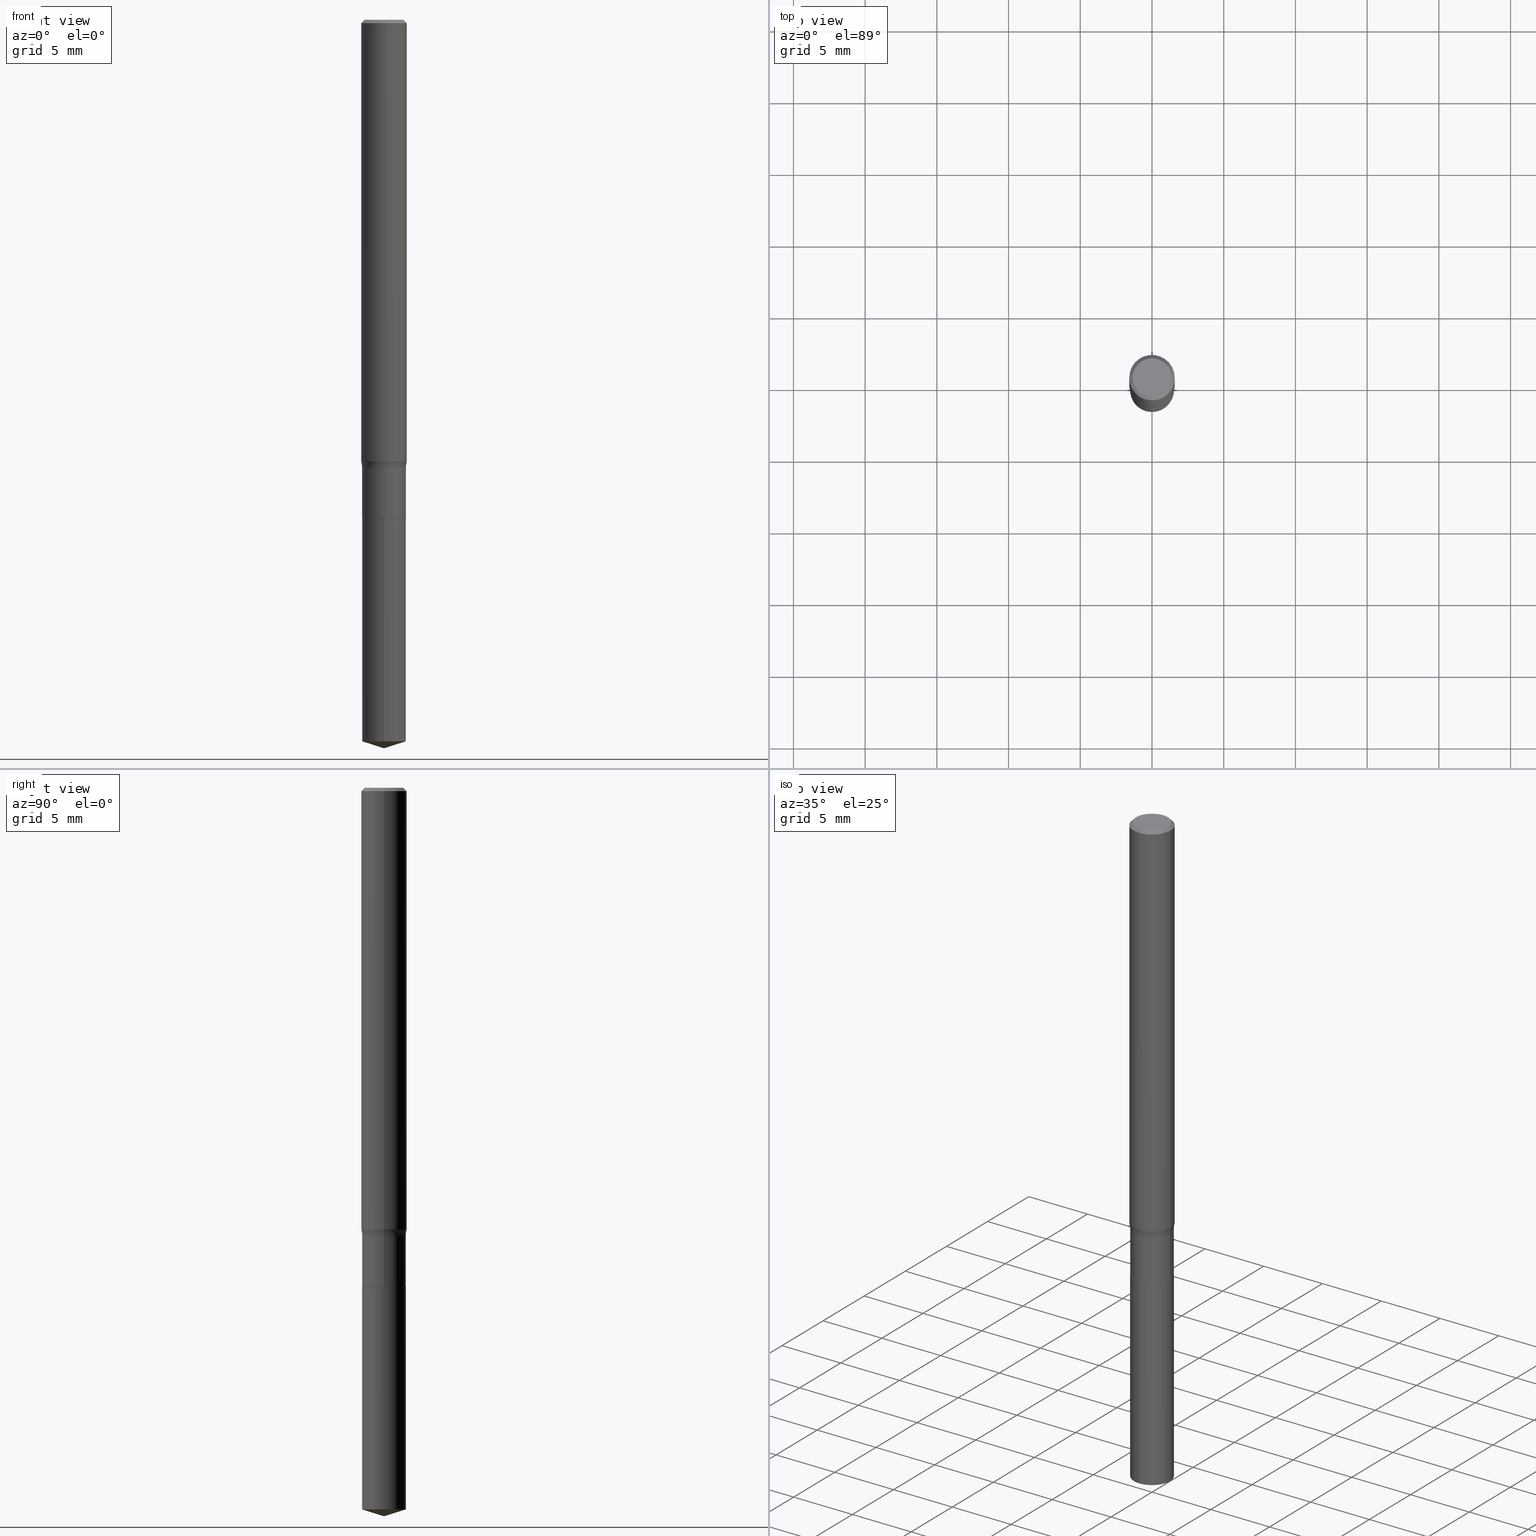
[diagram: canonical four-view strip — front | top / right | iso, engineering-drawing reading convention]
A machine part, canonical four-view strip (front | top / right | iso — engineering-drawing reading convention). The complete STEP part file that produces these views, byte-faithful:
ISO-10303-21;
HEADER;
FILE_DESCRIPTION (( 'STEP AP203' ),
    '1' );
FILE_NAME ('52316.STEP',
    '2024-04-19T13:36:10',
    ( '' ),
    ( '' ),
    'SwSTEP 2.0',
    'SolidWorks 2023',
    '' );
FILE_SCHEMA (( 'CONFIG_CONTROL_DESIGN' ));
ENDSEC;

DATA;
#1 = ORIENTED_EDGE ( 'NONE', *, *, #242, .T. ) ;
#2 = DIRECTION ( 'NONE',  ( -2.445468806185136597E-29, 3.491481338843145583E-15, 1.000000000000000000 ) ) ;
#3 = CARTESIAN_POINT ( 'NONE',  ( 2.292627005798581499E-31, -3.273263755165471417E-17, -0.009375000000000063838 ) ) ;
#4 = COORDINATED_UNIVERSAL_TIME_OFFSET ( 5, 0, .BEHIND. ) ;
#5 = CIRCLE ( 'NONE', #373, 0.07799999999999999989 ) ;
#6 = VERTEX_POINT ( 'NONE', #291 ) ;
#7 = DIRECTION ( 'NONE',  ( -1.000000000000000000, 6.982962677686265922E-15, -4.876176775795935793E-29 ) ) ;
#8 = ORIENTED_EDGE ( 'NONE', *, *, #246, .F. ) ;
#9 = DIRECTION ( 'NONE',  ( 1.000000000000000000, -6.982962677686260400E-15, 0.000000000000000000 ) ) ;
#10 = LINE ( 'NONE', #205, #301 ) ;
#11 = VERTEX_POINT ( 'NONE', #25 ) ;
#12 = CARTESIAN_POINT ( 'NONE',  ( 2.292627005798581499E-31, -3.273263755165471417E-17, -0.009375000000000063838 ) ) ;
#13 = DIRECTION ( 'NONE',  ( 1.000000000000000000, -6.982962677686260400E-15, 0.000000000000000000 ) ) ;
#14 = APPROVAL_ROLE ( '' ) ;
#15 = CIRCLE ( 'NONE', #211, 0.05999999999999999778 ) ;
#16 = ORIENTED_EDGE ( 'NONE', *, *, #24, .T. ) ;
#17 = AXIS2_PLACEMENT_3D ( 'NONE', #388, #337, #336 ) ;
#18 = DIRECTION ( 'NONE',  ( -6.982962677686265922E-15, -1.000000000000000000, 4.553079989440439092E-15 ) ) ;
#19 = PERSON_AND_ORGANIZATION ( #187, #224 ) ;
#20 = FACE_OUTER_BOUND ( 'NONE', #313, .T. ) ;
#21 = ADVANCED_FACE ( 'NONE', ( #328 ), #434, .T. ) ;
#22 = AXIS2_PLACEMENT_3D ( 'NONE', #103, #449, #297 ) ;
#23 =( GEOMETRIC_REPRESENTATION_CONTEXT ( 3 ) GLOBAL_UNCERTAINTY_ASSIGNED_CONTEXT ( ( #193 ) ) GLOBAL_UNIT_ASSIGNED_CONTEXT ( ( #278, #207, #378 ) ) REPRESENTATION_CONTEXT ( 'NONE', 'WORKASPACE' ) );
#24 = EDGE_CURVE ( 'NONE', #6, #293, #32, .T. ) ;
#25 = CARTESIAN_POINT ( 'NONE',  ( 0.05999999999999999778, -5.200561454206863446E-15, -1.369499999999999940 ) ) ;
#26 = PLANE ( 'NONE',  #272 ) ;
#27 = PLANE ( 'NONE',  #74 ) ;
#28 = ORIENTED_EDGE ( 'NONE', *, *, #37, .F. ) ;
#29 = DIRECTION ( 'NONE',  ( -2.445468806185136597E-29, 3.491481338843145583E-15, 1.000000000000000000 ) ) ;
#30 = DIRECTION ( 'NONE',  ( 1.000000000000000000, -6.982962677686266711E-15, 4.883557194083112340E-29 ) ) ;
#31 = DIRECTION ( 'NONE',  ( -2.445468806185136597E-29, 3.491481338843145583E-15, 1.000000000000000000 ) ) ;
#32 = CIRCLE ( 'NONE', #223, 0.05999999999999999778 ) ;
#33 = DIRECTION ( 'NONE',  ( 1.000000000000000000, -6.982962677686266711E-15, 4.876176775795935793E-29 ) ) ;
#34 = CIRCLE ( 'NONE', #485, 0.05999999999999998390 ) ;
#35 = ORIENTED_EDGE ( 'NONE', *, *, #276, .F. ) ;
#36 = CARTESIAN_POINT ( 'NONE',  ( 3.350292264473637048E-29, -4.783329434215109105E-15, -1.369999999999999885 ) ) ;
#37 = EDGE_CURVE ( 'NONE', #140, #11, #325, .T. ) ;
#38 = FACE_OUTER_BOUND ( 'NONE', #124, .T. ) ;
#39 = LINE ( 'NONE', #347, #219 ) ;
#40 = TOROIDAL_SURFACE ( 'NONE', #234, 0.1379999999999999560, 0.07799999999999999989 ) ;
#41 = CARTESIAN_POINT ( 'NONE',  ( 3.350292264473637048E-29, -4.783329434215109105E-15, -1.369999999999999885 ) ) ;
#42 = EDGE_LOOP ( 'NONE', ( #201, #87, #204, #118 ) ) ;
#43 = PERSON_AND_ORGANIZATION ( #187, #224 ) ;
#44 = ORIENTED_EDGE ( 'NONE', *, *, #435, .T. ) ;
#45 = LOCAL_TIME ( 9, 36, 10.00000000000000000, #260 ) ;
#46 = CLOSED_SHELL ( 'NONE', ( #331, #487, #470, #371, #344, #79, #158, #117, #318, #169, #376, #132 ) ) ;
#47 = VECTOR ( 'NONE', #370, 39.37007874015748143 ) ;
#48 = ORIENTED_EDGE ( 'NONE', *, *, #427, .T. ) ;
#49 = ORIENTED_EDGE ( 'NONE', *, *, #194, .F. ) ;
#50 = DIRECTION ( 'NONE',  ( -2.445138030022323446E-29, 3.491955029134903730E-15, 1.000000000000000000 ) ) ;
#51 = ORIENTED_EDGE ( 'NONE', *, *, #392, .F. ) ;
#52 = DIRECTION ( 'NONE',  ( -2.445138030022323446E-29, 3.491955029134904124E-15, 1.000000000000000000 ) ) ;
#53 = SHAPE_DEFINITION_REPRESENTATION ( #345, #255 ) ;
#54 = AXIS2_PLACEMENT_3D ( 'NONE', #384, #228, #289 ) ;
#55 = ORIENTED_EDGE ( 'NONE', *, *, #246, .T. ) ;
#56 = DIRECTION ( 'NONE',  ( 1.000000000000000000, -6.982962677686266711E-15, 0.000000000000000000 ) ) ;
#57 = PERSON_AND_ORGANIZATION ( #187, #224 ) ;
#58 = ORIENTED_EDGE ( 'NONE', *, *, #181, .F. ) ;
#59 = DIRECTION ( 'NONE',  ( -6.982962677686265922E-15, -1.000000000000000000, 4.553079989440439092E-15 ) ) ;
#60 = AXIS2_PLACEMENT_3D ( 'NONE', #36, #66, #405 ) ;
#61 = DIRECTION ( 'NONE',  ( 1.000000000000000000, -6.982962677686266711E-15, 0.000000000000000000 ) ) ;
#62 = EDGE_CURVE ( 'NONE', #229, #153, #107, .T. ) ;
#63 = ORIENTED_EDGE ( 'NONE', *, *, #62, .T. ) ;
#64 = DIRECTION ( 'NONE',  ( -2.445468806185136597E-29, 3.491481338843145583E-15, 1.000000000000000000 ) ) ;
#65 = CYLINDRICAL_SURFACE ( 'NONE', #339, 0.05999999999999999084 ) ;
#66 = DIRECTION ( 'NONE',  ( 2.445138030022323446E-29, -3.491955029134903730E-15, -1.000000000000000000 ) ) ;
#67 = CARTESIAN_POINT ( 'NONE',  ( -0.05949999999999999040, -4.360556506437849513E-15, -1.369999999999999885 ) ) ;
#68 = ORIENTED_EDGE ( 'NONE', *, *, #180, .T. ) ;
#69 = CARTESIAN_POINT ( 'NONE',  ( 3.012817569220087740E-29, -4.301505009454755187E-15, -1.231999999999999762 ) ) ;
#70 = APPROVAL_DATE_TIME ( #220, #436 ) ;
#71 = DIRECTION ( 'NONE',  ( -2.445138030022323446E-29, 3.491955029134904124E-15, 1.000000000000000000 ) ) ;
#72 = CC_DESIGN_PERSON_AND_ORGANIZATION_ASSIGNMENT ( #381, #191, ( #147 ) ) ;
#73 = CARTESIAN_POINT ( 'NONE',  ( 0.05949999999999999040, -5.198815713537441154E-15, -1.369999999999999885 ) ) ;
#74 = AXIS2_PLACEMENT_3D ( 'NONE', #176, #406, #7 ) ;
#75 = CONICAL_SURFACE ( 'NONE', #143, 124.8659371009132428, 1.265363707695887463 ) ;
#76 = APPROVAL_STATUS ( 'not_yet_approved' ) ;
#77 = ORIENTED_EDGE ( 'NONE', *, *, #427, .F. ) ;
#78 = DIRECTION ( 'NONE',  ( -2.445468806185136877E-29, 3.491481338843145188E-15, 1.000000000000000000 ) ) ;
#79 = ADVANCED_FACE ( 'NONE', ( #408 ), #65, .T. ) ;
#80 = PERSON_AND_ORGANIZATION ( #187, #224 ) ;
#81 = ORIENTED_EDGE ( 'NONE', *, *, #445, .T. ) ;
#82 = CARTESIAN_POINT ( 'NONE',  ( 3.350292264473637048E-29, -4.783329434215109105E-15, -1.369999999999999885 ) ) ;
#83 = ORIENTED_EDGE ( 'NONE', *, *, #37, .T. ) ;
#84 = CARTESIAN_POINT ( 'NONE',  ( 4.263256414561086600E-16, 0.05999999999999308664, -1.981082072667261107 ) ) ;
#85 = DIRECTION ( 'NONE',  ( -2.445138030022323446E-29, 3.491955029134904124E-15, 1.000000000000000000 ) ) ;
#86 = AXIS2_PLACEMENT_3D ( 'NONE', #361, #119, #13 ) ;
#87 = ORIENTED_EDGE ( 'NONE', *, *, #181, .T. ) ;
#88 = EDGE_CURVE ( 'NONE', #346, #140, #438, .T. ) ;
#89 = FACE_OUTER_BOUND ( 'NONE', #244, .T. ) ;
#90 = VERTEX_POINT ( 'NONE', #131 ) ;
#91 = CARTESIAN_POINT ( 'NONE',  ( -4.189777606611424662E-16, -0.06000000000000477868, -1.369999999999999662 ) ) ;
#92 = ORIENTED_EDGE ( 'NONE', *, *, #341, .F. ) ;
#93 = CIRCLE ( 'NONE', #369, 0.06250000000000013878 ) ;
#94 = CARTESIAN_POINT ( 'NONE',  ( 3.350292264473637048E-29, -4.783329434215109105E-15, -1.369999999999999885 ) ) ;
#95 = FACE_OUTER_BOUND ( 'NONE', #321, .T. ) ;
#96 = ORIENTED_EDGE ( 'NONE', *, *, #479, .T. ) ;
#97 = CARTESIAN_POINT ( 'NONE',  ( 0.000000000000000000, 0.000000000000000000, 0.000000000000000000 ) ) ;
#98 = ORIENTED_EDGE ( 'NONE', *, *, #338, .T. ) ;
#99 = CARTESIAN_POINT ( 'NONE',  ( 2.292627005798581499E-31, -3.273263755165471417E-17, -0.009375000000000063838 ) ) ;
#100 = CIRCLE ( 'NONE', #113, 0.06250000000000000000 ) ;
#101 = CIRCLE ( 'NONE', #490, 0.05312499999999999861 ) ;
#102 = LINE ( 'NONE', #218, #389 ) ;
#103 = CARTESIAN_POINT ( 'NONE',  ( 2.964911965054426097E-29, -4.233108503006840513E-15, -1.212410461975839571 ) ) ;
#104 = CC_DESIGN_PERSON_AND_ORGANIZATION_ASSIGNMENT ( #43, #115, ( #312 ) ) ;
#105 = ORIENTED_EDGE ( 'NONE', *, *, #168, .F. ) ;
#106 = DIRECTION ( 'NONE',  ( -2.445468806185136597E-29, 3.491481338843145583E-15, 1.000000000000000000 ) ) ;
#107 = CIRCLE ( 'NONE', #22, 0.06250000000000013878 ) ;
#108 = CONICAL_SURFACE ( 'NONE', #456, 0.06250000000000000000, 0.7853981633974471688 ) ;
#109 = DIRECTION ( 'NONE',  ( 0.000000000000000000, 0.000000000000000000, 1.000000000000000000 ) ) ;
#110 = EDGE_CURVE ( 'NONE', #229, #231, #102, .T. ) ;
#111 = CARTESIAN_POINT ( 'NONE',  ( 9.546038302585977863E-46, -1.362921273379660165E-31, -3.903561672282188024E-17 ) ) ;
#112 = CC_DESIGN_APPROVAL ( #436, ( #312 ) ) ;
#113 = AXIS2_PLACEMENT_3D ( 'NONE', #99, #248, #61 ) ;
#114 = LOCAL_TIME ( 9, 36, 10.00000000000000000, #170 ) ;
#115 = PERSON_AND_ORGANIZATION_ROLE ( 'creator' ) ;
#116 = ADVANCED_FACE ( 'NONE', ( #446 ), #285, .T. ) ;
#117 = ADVANCED_FACE ( 'NONE', ( #20 ), #252, .T. ) ;
#118 = ORIENTED_EDGE ( 'NONE', *, *, #290, .F. ) ;
#119 = DIRECTION ( 'NONE',  ( -2.445468806185136597E-29, 3.491481338843145583E-15, 1.000000000000000000 ) ) ;
#120 = DATE_AND_TIME ( #226, #129 ) ;
#121 = EDGE_LOOP ( 'NONE', ( #279, #452, #130 ) ) ;
#122 = EDGE_LOOP ( 'NONE', ( #51, #83, #198, #192 ) ) ;
#123 = AXIS2_PLACEMENT_3D ( 'NONE', #261, #354, #9 ) ;
#124 = EDGE_LOOP ( 'NONE', ( #81, #463, #350, #189 ) ) ;
#125 = DIRECTION ( 'NONE',  ( -2.445468806185136597E-29, 3.491481338843145583E-15, 1.000000000000000000 ) ) ;
#126 = DATE_AND_TIME ( #471, #284 ) ;
#127 = VERTEX_POINT ( 'NONE', #179 ) ;
#128 = ORIENTED_EDGE ( 'NONE', *, *, #420, .T. ) ;
#129 = LOCAL_TIME ( 9, 36, 10.00000000000000000, #4 ) ;
#130 = ORIENTED_EDGE ( 'NONE', *, *, #440, .F. ) ;
#131 = CARTESIAN_POINT ( 'NONE',  ( 0.05312499999999999861, -4.129888592719941322E-16, -3.903561672281913772E-17 ) ) ;
#132 = ADVANCED_FACE ( 'NONE', ( #451 ), #455, .T. ) ;
#133 = ORIENTED_EDGE ( 'NONE', *, *, #445, .F. ) ;
#134 = DIRECTION ( 'NONE',  ( -2.445468806185136597E-29, 3.491481338843145583E-15, 1.000000000000000000 ) ) ;
#135 = CARTESIAN_POINT ( 'NONE',  ( -0.06250000000000013878, -3.789019293156776319E-15, -1.212410461975839571 ) ) ;
#136 = DIRECTION ( 'NONE',  ( -2.445468806185136597E-29, 3.491481338843145583E-15, 1.000000000000000000 ) ) ;
#137 = TOROIDAL_SURFACE ( 'NONE', #249, 0.1379999999999999560, 0.07799999999999999989 ) ;
#138 = CIRCLE ( 'NONE', #404, 0.05999999999999999778 ) ;
#139 = CARTESIAN_POINT ( 'NONE',  ( -0.05312499999999999861, 3.873362110279098601E-16, -3.903561672282453649E-17 ) ) ;
#140 = VERTEX_POINT ( 'NONE', #480 ) ;
#141 = DIRECTION ( 'NONE',  ( 1.000000000000000000, -6.982962677686270655E-15, 0.000000000000000000 ) ) ;
#142 = FACE_OUTER_BOUND ( 'NONE', #121, .T. ) ;
#143 = AXIS2_PLACEMENT_3D ( 'NONE', #167, #85, #356 ) ;
#144 = COORDINATED_UNIVERSAL_TIME_OFFSET ( 5, 0, .BEHIND. ) ;
#145 = DIRECTION ( 'NONE',  ( -2.438088387897960049E-29, 3.491481338843145188E-15, 1.000000000000000000 ) ) ;
#146 = CARTESIAN_POINT ( 'NONE',  ( -0.05999999999999998390, -4.115218710044161299E-15, -1.231999999999999762 ) ) ;
#147 = PRODUCT ( '52316', '52316', '', ( #258 ) ) ;
#148 = SECURITY_CLASSIFICATION_LEVEL ( 'unclassified' ) ;
#149 = LINE ( 'NONE', #73, #239 ) ;
#150 = SECURITY_CLASSIFICATION ( '', '', #148 ) ;
#151 = DIRECTION ( 'NONE',  ( 6.776566513254248671E-15, 0.9537169507482274877, 0.3007057995042711762 ) ) ;
#152 = AXIS2_PLACEMENT_3D ( 'NONE', #489, #254, #299 ) ;
#153 = VERTEX_POINT ( 'NONE', #135 ) ;
#154 = CARTESIAN_POINT ( 'NONE',  ( 0.05999999999999998390, -4.720482770115931032E-15, -1.231999999999999762 ) ) ;
#155 = EDGE_LOOP ( 'NONE', ( #390, #128, #48, #28 ) ) ;
#156 = CARTESIAN_POINT ( 'NONE',  ( 4.844472279817221330E-29, -6.917200551079731638E-15, -1.981082072667260885 ) ) ;
#157 = EDGE_LOOP ( 'NONE', ( #396, #240 ) ) ;
#158 = ADVANCED_FACE ( 'NONE', ( #95 ), #137, .F. ) ;
#159 = DIRECTION ( 'NONE',  ( -2.445468806185136597E-29, 3.491481338843145583E-15, 1.000000000000000000 ) ) ;
#160 = LOCAL_TIME ( 9, 36, 10.00000000000000000, #144 ) ;
#161 = PERSON_AND_ORGANIZATION_ROLE ( 'classification_officer' ) ;
#162 = CIRCLE ( 'NONE', #430, 0.05999999999999999778 ) ;
#163 =( LENGTH_UNIT ( ) NAMED_UNIT ( * ) SI_UNIT ( $, .METRE. ) );
#164 = ORIENTED_EDGE ( 'NONE', *, *, #266, .T. ) ;
#165 = CARTESIAN_POINT ( 'NONE',  ( 0.05999999999999999084, -4.189777606611759435E-16, 2.925706065477561055E-30 ) ) ;
#166 = MANIFOLD_SOLID_BREP ( 'Body-Move/Copy2[1]', #210 ) ;
#167 = CARTESIAN_POINT ( 'NONE',  ( -9.137454754914471852E-28, 1.304952833515599863E-13, 37.37007874015748143 ) ) ;
#168 = EDGE_CURVE ( 'NONE', #231, #127, #100, .T. ) ;
#169 = ADVANCED_FACE ( 'NONE', ( #241 ), #27, .F. ) ;
#170 = COORDINATED_UNIVERSAL_TIME_OFFSET ( 5, 0, .BEHIND. ) ;
#171 = ORIENTED_EDGE ( 'NONE', *, *, #440, .T. ) ;
#172 = AXIS2_PLACEMENT_3D ( 'NONE', #111, #2, #222 ) ;
#173 = ORIENTED_EDGE ( 'NONE', *, *, #242, .F. ) ;
#174 = DIRECTION ( 'NONE',  ( -2.445138030022323446E-29, 3.491955029134904124E-15, 1.000000000000000000 ) ) ;
#175 = CYLINDRICAL_SURFACE ( 'NONE', #152, 0.05999999999999999084 ) ;
#176 = CARTESIAN_POINT ( 'NONE',  ( 4.773019151292988932E-46, -6.814606366898300824E-32, -1.951780836141094012E-17 ) ) ;
#177 = CC_DESIGN_PERSON_AND_ORGANIZATION_ASSIGNMENT ( #188, #343, ( #232 ) ) ;
#178 = AXIS2_PLACEMENT_3D ( 'NONE', #12, #159, #56 ) ;
#179 = CARTESIAN_POINT ( 'NONE',  ( -0.06250000000000000000, -1.688831360429183546E-15, -0.009375000000000063838 ) ) ;
#180 = EDGE_CURVE ( 'NONE', #153, #379, #448, .T. ) ;
#181 = EDGE_CURVE ( 'NONE', #90, #231, #359, .T. ) ;
#182 = DATE_TIME_ROLE ( 'creation_date' ) ;
#183 = LINE ( 'NONE', #304, #477 ) ;
#184 = VECTOR ( 'NONE', #374, 39.37007874015748143 ) ;
#185 = AXIS2_PLACEMENT_3D ( 'NONE', #283, #125, #238 ) ;
#186 = CARTESIAN_POINT ( 'NONE',  ( 0.000000000000000000, 0.000000000000000000, 0.000000000000000000 ) ) ;
#187 = PERSON ( 'UNSPECIFIED', 'UNSPECIFIED', 'UNSPECIFIED', ('UNSPECIFIED'), ('UNSPECIFIED'), ('UNSPECIFIED') ) ;
#188 = PERSON_AND_ORGANIZATION ( #187, #224 ) ;
#189 = ORIENTED_EDGE ( 'NONE', *, *, #474, .F. ) ;
#190 = CARTESIAN_POINT ( 'NONE',  ( 0.06250000000000000000, -4.691678049070464390E-16, -0.009375000000000063838 ) ) ;
#191 = PERSON_AND_ORGANIZATION_ROLE ( 'design_owner' ) ;
#192 = ORIENTED_EDGE ( 'NONE', *, *, #266, .F. ) ;
#193 = UNCERTAINTY_MEASURE_WITH_UNIT (LENGTH_MEASURE( 1.000000000000000082E-05 ), #278, 'distance_accuracy_value', 'NONE');
#194 = EDGE_CURVE ( 'NONE', #315, #473, #399, .T. ) ;
#195 = PERSON_AND_ORGANIZATION ( #187, #224 ) ;
#196 = ORIENTED_EDGE ( 'NONE', *, *, #197, .T. ) ;
#197 = EDGE_CURVE ( 'NONE', #127, #231, #398, .T. ) ;
#198 = ORIENTED_EDGE ( 'NONE', *, *, #474, .T. ) ;
#199 = FACE_OUTER_BOUND ( 'NONE', #421, .T. ) ;
#200 = DATE_AND_TIME ( #397, #114 ) ;
#201 = ORIENTED_EDGE ( 'NONE', *, *, #360, .F. ) ;
#202 = CIRCLE ( 'NONE', #333, 0.05999999999999998390 ) ;
#203 = APPROVAL_PERSON_ORGANIZATION ( #80, #436, #262 ) ;
#204 = ORIENTED_EDGE ( 'NONE', *, *, #168, .T. ) ;
#205 = CARTESIAN_POINT ( 'NONE',  ( 4.891190334145958916E-29, -6.982612146870389687E-15, -2.000000000000000000 ) ) ;
#206 = EDGE_CURVE ( 'NONE', #315, #400, #10, .T. ) ;
#207 =( NAMED_UNIT ( * ) PLANE_ANGLE_UNIT ( ) SI_UNIT ( $, .RADIAN. ) );
#208 = EDGE_LOOP ( 'NONE', ( #58, #326, #464, #196 ) ) ;
#209 = LINE ( 'NONE', #165, #47 ) ;
#210 = CLOSED_SHELL ( 'NONE', ( #21, #259, #362, #116, #357 ) ) ;
#211 = AXIS2_PLACEMENT_3D ( 'NONE', #82, #432, #444 ) ;
#212 = DIRECTION ( 'NONE',  ( -6.982962677686265922E-15, -1.000000000000000000, 4.553079989440439092E-15 ) ) ;
#213 = DIRECTION ( 'NONE',  ( -6.982962677686267499E-15, -1.000000000000000000, 3.500519750498755708E-15 ) ) ;
#214 = ORIENTED_EDGE ( 'NONE', *, *, #88, .T. ) ;
#215 = CARTESIAN_POINT ( 'NONE',  ( 0.05949999999999999040, -5.198815713537441154E-15, -1.369999999999999885 ) ) ;
#216 = DIRECTION ( 'NONE',  ( -2.445138030022323446E-29, 3.491955029134904124E-15, 1.000000000000000000 ) ) ;
#217 = DIRECTION ( 'NONE',  ( -6.982962677686266711E-15, -1.000000000000000000, 3.491481338843145583E-15 ) ) ;
#218 = CARTESIAN_POINT ( 'NONE',  ( 0.06250000000000006939, -4.364351673553921624E-16, 3.047610484872463374E-30 ) ) ;
#219 = VECTOR ( 'NONE', #305, 39.37007874015748143 ) ;
#220 = DATE_AND_TIME ( #414, #160 ) ;
#221 = APPLICATION_CONTEXT ( 'configuration controlled 3d designs of mechanical parts and assemblies' ) ;
#222 = DIRECTION ( 'NONE',  ( 1.000000000000000000, -6.982962677686266711E-15, 4.881282378734115390E-29 ) ) ;
#223 = AXIS2_PLACEMENT_3D ( 'NONE', #94, #174, #212 ) ;
#224 = ORGANIZATION ( 'UNSPECIFIED', 'UNSPECIFIED', '' ) ;
#225 = CC_DESIGN_PERSON_AND_ORGANIZATION_ASSIGNMENT ( #19, #161, ( #150 ) ) ;
#226 = CALENDAR_DATE ( 2024, 19, 4 ) ;
#227 = ORIENTED_EDGE ( 'NONE', *, *, #276, .T. ) ;
#228 = DIRECTION ( 'NONE',  ( -2.445468806185136597E-29, 3.491481338843145583E-15, 1.000000000000000000 ) ) ;
#229 = VERTEX_POINT ( 'NONE', #281 ) ;
#230 = FACE_OUTER_BOUND ( 'NONE', #270, .T. ) ;
#231 = VERTEX_POINT ( 'NONE', #190 ) ;
#232 = PRODUCT_DEFINITION_FORMATION_WITH_SPECIFIED_SOURCE ( 'ANY', '', #147, .NOT_KNOWN. ) ;
#233 = AXIS2_PLACEMENT_3D ( 'NONE', #402, #372, #327 ) ;
#234 = AXIS2_PLACEMENT_3D ( 'NONE', #69, #106, #412 ) ;
#235 = ORIENTED_EDGE ( 'NONE', *, *, #338, .F. ) ;
#236 = EDGE_LOOP ( 'NONE', ( #1, #55, #482, #323 ) ) ;
#237 = DIRECTION ( 'NONE',  ( 1.000000000000000000, -6.982962677686268288E-15, 0.000000000000000000 ) ) ;
#238 = DIRECTION ( 'NONE',  ( 1.000000000000000000, -6.982962677686266711E-15, 4.876176775795935793E-29 ) ) ;
#239 = VECTOR ( 'NONE', #308, 39.37007874015748143 ) ;
#240 = ORIENTED_EDGE ( 'NONE', *, *, #360, .T. ) ;
#241 = FACE_OUTER_BOUND ( 'NONE', #157, .T. ) ;
#242 = EDGE_CURVE ( 'NONE', #473, #400, #162, .T. ) ;
#243 = DIRECTION ( 'NONE',  ( 1.000000000000000000, -6.982962677686266711E-15, 4.876176775795935793E-29 ) ) ;
#244 = EDGE_LOOP ( 'NONE', ( #49, #306, #173 ) ) ;
#245 = DIRECTION ( 'NONE',  ( 1.000000000000000000, -6.982962677686269866E-15, 0.000000000000000000 ) ) ;
#246 = EDGE_CURVE ( 'NONE', #400, #6, #428, .T. ) ;
#247 = CARTESIAN_POINT ( 'NONE',  ( 4.890276060044646893E-29, -6.983910058269807459E-15, -2.000000000000000000 ) ) ;
#248 = DIRECTION ( 'NONE',  ( -2.445468806185136597E-29, 3.491481338843145583E-15, 1.000000000000000000 ) ) ;
#249 = AXIS2_PLACEMENT_3D ( 'NONE', #335, #486, #30 ) ;
#250 = VECTOR ( 'NONE', #475, 39.37007874015748143 ) ;
#251 = CARTESIAN_POINT ( 'NONE',  ( 0.1379999999999999560, -5.265153858975459078E-15, -1.231999999999999762 ) ) ;
#252 = CYLINDRICAL_SURFACE ( 'NONE', #332, 0.06250000000000006939 ) ;
#253 = CARTESIAN_POINT ( 'NONE',  ( 0.000000000000000000, 0.000000000000000000, 0.000000000000000000 ) ) ;
#254 = DIRECTION ( 'NONE',  ( -2.445468806185136597E-29, 3.491481338843145583E-15, 1.000000000000000000 ) ) ;
#255 = ADVANCED_BREP_SHAPE_REPRESENTATION ( '52316', ( #166, #491, #383 ), #23 ) ;
#256 = VERTEX_POINT ( 'NONE', #154 ) ;
#257 = FACE_OUTER_BOUND ( 'NONE', #431, .T. ) ;
#258 = MECHANICAL_CONTEXT ( 'NONE', #302, 'mechanical' ) ;
#259 = ADVANCED_FACE ( 'NONE', ( #89 ), #75, .T. ) ;
#260 = COORDINATED_UNIVERSAL_TIME_OFFSET ( 5, 0, .BEHIND. ) ;
#261 = CARTESIAN_POINT ( 'NONE',  ( 3.350292264473637048E-29, -4.783329434215109105E-15, -1.369999999999999885 ) ) ;
#262 = APPROVAL_ROLE ( '' ) ;
#263 = VECTOR ( 'NONE', #368, 39.37007874015748143 ) ;
#264 = CIRCLE ( 'NONE', #86, 0.05949999999999999040 ) ;
#265 = PERSON_AND_ORGANIZATION ( #187, #224 ) ;
#266 = EDGE_CURVE ( 'NONE', #379, #256, #34, .T. ) ;
#267 = ORIENTED_EDGE ( 'NONE', *, *, #197, .F. ) ;
#268 = DIRECTION ( 'NONE',  ( -1.000000000000000000, 6.982962677686266711E-15, 0.000000000000000000 ) ) ;
#269 = ORIENTED_EDGE ( 'NONE', *, *, #341, .T. ) ;
#270 = EDGE_LOOP ( 'NONE', ( #227, #214, #133, #77 ) ) ;
#271 = AXIS2_PLACEMENT_3D ( 'NONE', #481, #136, #237 ) ;
#272 = AXIS2_PLACEMENT_3D ( 'NONE', #41, #145, #425 ) ;
#273 = ORIENTED_EDGE ( 'NONE', *, *, #110, .T. ) ;
#274 = CARTESIAN_POINT ( 'NONE',  ( -4.189777606611274778E-16, -0.06000000000000692280, -1.981082072667260663 ) ) ;
#275 = CARTESIAN_POINT ( 'NONE',  ( 0.06250000000000000000, -4.615137624123754923E-16, -0.009375000000000063838 ) ) ;
#276 = EDGE_CURVE ( 'NONE', #358, #346, #264, .T. ) ;
#277 = DIRECTION ( 'NONE',  ( -2.445468806185136597E-29, 3.491481338843145583E-15, 1.000000000000000000 ) ) ;
#278 =( CONVERSION_BASED_UNIT ( 'INCH', #472 ) LENGTH_UNIT ( ) NAMED_UNIT ( #307 ) );
#279 = ORIENTED_EDGE ( 'NONE', *, *, #206, .F. ) ;
#280 = DIRECTION ( 'NONE',  ( 7.105427357601001859E-15, 1.000000000000000000, -3.491481338843145583E-15 ) ) ;
#281 = CARTESIAN_POINT ( 'NONE',  ( 0.06250000000000013878, -4.669543670362232971E-15, -1.212410461975839571 ) ) ;
#282 = DIRECTION ( 'NONE',  ( -2.445138030022323446E-29, 3.491955029134904124E-15, 1.000000000000000000 ) ) ;
#283 = CARTESIAN_POINT ( 'NONE',  ( 0.000000000000000000, 0.000000000000000000, 0.000000000000000000 ) ) ;
#284 = LOCAL_TIME ( 9, 36, 10.00000000000000000, #320 ) ;
#285 = CYLINDRICAL_SURFACE ( 'NONE', #468, 0.05999999999999999778 ) ;
#286 = EDGE_CURVE ( 'NONE', #293, #6, #15, .T. ) ;
#287 = CONICAL_SURFACE ( 'NONE', #17, 0.05949999999999999040, 0.7853981633975591903 ) ;
#288 = ORIENTED_EDGE ( 'NONE', *, *, #420, .F. ) ;
#289 = DIRECTION ( 'NONE',  ( 1.000000000000000000, -6.982962677686268288E-15, 0.000000000000000000 ) ) ;
#290 = EDGE_CURVE ( 'NONE', #365, #127, #319, .T. ) ;
#291 = CARTESIAN_POINT ( 'NONE',  ( 4.263256414561086600E-16, 0.05999999999999521688, -1.370000000000000107 ) ) ;
#292 = CARTESIAN_POINT ( 'NONE',  ( 3.012817569220087740E-29, -4.301505009454755187E-15, -1.231999999999999762 ) ) ;
#293 = VERTEX_POINT ( 'NONE', #91 ) ;
#294 = APPROVAL_PERSON_ORGANIZATION ( #265, #364, #349 ) ;
#295 = CIRCLE ( 'NONE', #123, 0.05949999999999999040 ) ;
#296 = VECTOR ( 'NONE', #78, 39.37007874015748143 ) ;
#297 = DIRECTION ( 'NONE',  ( 1.000000000000000000, -6.982962677686262766E-15, 0.000000000000000000 ) ) ;
#298 = FACE_OUTER_BOUND ( 'NONE', #387, .T. ) ;
#299 = DIRECTION ( 'NONE',  ( 1.000000000000000000, -6.982962677686266711E-15, 4.876176775795935793E-29 ) ) ;
#300 = APPLICATION_PROTOCOL_DEFINITION ( 'international standard', 'config_control_design', 1994, #221 ) ;
#301 = VECTOR ( 'NONE', #151, 39.37007874015748854 ) ;
#302 = APPLICATION_CONTEXT ( 'configuration controlled 3d designs of mechanical parts and assemblies' ) ;
#303 = CALENDAR_DATE ( 2024, 19, 4 ) ;
#304 = CARTESIAN_POINT ( 'NONE',  ( -4.189777606611424662E-16, -0.06000000000000477868, -1.369999999999999662 ) ) ;
#305 = DIRECTION ( 'NONE',  ( -2.445468806185136877E-29, 3.491481338843145188E-15, 1.000000000000000000 ) ) ;
#306 = ORIENTED_EDGE ( 'NONE', *, *, #206, .T. ) ;
#307 = DIMENSIONAL_EXPONENTS ( 1.000000000000000000, 0.000000000000000000, 0.000000000000000000, 0.000000000000000000, 0.000000000000000000, 0.000000000000000000, 0.000000000000000000 ) ;
#308 = DIRECTION ( 'NONE',  ( 0.7071067811866259545, -2.468850131083078659E-15, 0.7071067811864690800 ) ) ;
#309 = AXIS2_PLACEMENT_3D ( 'NONE', #3, #310, #268 ) ;
#310 = DIRECTION ( 'NONE',  ( 2.445468806185136597E-29, -3.491481338843145583E-15, -1.000000000000000000 ) ) ;
#311 = APPLICATION_PROTOCOL_DEFINITION ( 'international standard', 'config_control_design', 1994, #302 ) ;
#312 = PRODUCT_DEFINITION ( 'UNKNOWN', '', #232, #314 ) ;
#313 = EDGE_LOOP ( 'NONE', ( #394, #269, #273, #267 ) ) ;
#314 = DESIGN_CONTEXT ( 'detailed design', #221, 'design' ) ;
#315 = VERTEX_POINT ( 'NONE', #247 ) ;
#316 = APPROVAL ( #324, 'UNSPECIFIED' ) ;
#317 = ORIENTED_EDGE ( 'NONE', *, *, #110, .F. ) ;
#318 = ADVANCED_FACE ( 'NONE', ( #348 ), #340, .T. ) ;
#319 = LINE ( 'NONE', #322, #250 ) ;
#320 = COORDINATED_UNIVERSAL_TIME_OFFSET ( 5, 0, .BEHIND. ) ;
#321 = EDGE_LOOP ( 'NONE', ( #330, #386, #98, #96 ) ) ;
#322 = CARTESIAN_POINT ( 'NONE',  ( -0.06250000000000000000, 4.037025298037369491E-16, -0.009375000000000063838 ) ) ;
#323 = ORIENTED_EDGE ( 'NONE', *, *, #413, .F. ) ;
#324 = APPROVAL_STATUS ( 'not_yet_approved' ) ;
#325 = CIRCLE ( 'NONE', #271, 0.05999999999999999778 ) ;
#326 = ORIENTED_EDGE ( 'NONE', *, *, #401, .F. ) ;
#327 = DIRECTION ( 'NONE',  ( 1.000000000000000000, -6.982962677686260400E-15, 0.000000000000000000 ) ) ;
#328 = FACE_OUTER_BOUND ( 'NONE', #236, .T. ) ;
#329 = CARTESIAN_POINT ( 'NONE',  ( -0.05949999999999999040, -4.357907279263738312E-15, -1.369999999999999885 ) ) ;
#330 = ORIENTED_EDGE ( 'NONE', *, *, #180, .F. ) ;
#331 = ADVANCED_FACE ( 'NONE', ( #230 ), #287, .T. ) ;
#332 = AXIS2_PLACEMENT_3D ( 'NONE', #97, #375, #33 ) ;
#333 = AXIS2_PLACEMENT_3D ( 'NONE', #292, #134, #245 ) ;
#334 = DIRECTION ( 'NONE',  ( 1.000000000000000000, -6.982962677686262766E-15, 0.000000000000000000 ) ) ;
#335 = CARTESIAN_POINT ( 'NONE',  ( 3.012817569220087740E-29, -4.301505009454755187E-15, -1.231999999999999762 ) ) ;
#336 = DIRECTION ( 'NONE',  ( 1.000000000000000000, -6.982962677686260400E-15, 0.000000000000000000 ) ) ;
#337 = DIRECTION ( 'NONE',  ( -2.445468806185136597E-29, 3.491481338843145583E-15, 1.000000000000000000 ) ) ;
#338 = EDGE_CURVE ( 'NONE', #229, #256, #5, .T. ) ;
#339 = AXIS2_PLACEMENT_3D ( 'NONE', #253, #64, #243 ) ;
#340 = CONICAL_SURFACE ( 'NONE', #309, 0.06250000000000000000, 0.7853981633974471688 ) ;
#341 = EDGE_CURVE ( 'NONE', #153, #229, #93, .T. ) ;
#342 = PRODUCT_RELATED_PRODUCT_CATEGORY ( 'detail', '', ( #147 ) ) ;
#343 = PERSON_AND_ORGANIZATION_ROLE ( 'creator' ) ;
#344 = ADVANCED_FACE ( 'NONE', ( #38 ), #175, .T. ) ;
#345 = PRODUCT_DEFINITION_SHAPE ( 'NONE', 'NONE',  #312 ) ;
#346 = VERTEX_POINT ( 'NONE', #329 ) ;
#347 = CARTESIAN_POINT ( 'NONE',  ( -0.05999999999999999084, 4.263256414560600464E-16, -2.951361054152942712E-30 ) ) ;
#348 = FACE_OUTER_BOUND ( 'NONE', #208, .T. ) ;
#349 = APPROVAL_ROLE ( '' ) ;
#350 = ORIENTED_EDGE ( 'NONE', *, *, #479, .F. ) ;
#351 = CONICAL_SURFACE ( 'NONE', #391, 124.8659371009132428, 1.265363707695887463 ) ;
#352 = CARTESIAN_POINT ( 'NONE',  ( 4.263256414560935237E-16, 0.05999999999999521688, -1.370000000000000107 ) ) ;
#353 = ORIENTED_EDGE ( 'NONE', *, *, #24, .F. ) ;
#354 = DIRECTION ( 'NONE',  ( -2.445468806185136597E-29, 3.491481338843145583E-15, 1.000000000000000000 ) ) ;
#355 = CARTESIAN_POINT ( 'NONE',  ( 4.890276060044646332E-29, -6.983910058269807459E-15, -2.000000000000000000 ) ) ;
#356 = DIRECTION ( 'NONE',  ( -6.982962677686267499E-15, -1.000000000000000000, 3.500519750498755708E-15 ) ) ;
#357 = ADVANCED_FACE ( 'NONE', ( #380 ), #450, .F. ) ;
#358 = VERTEX_POINT ( 'NONE', #215 ) ;
#359 = LINE ( 'NONE', #275, #484 ) ;
#360 = EDGE_CURVE ( 'NONE', #90, #365, #101, .T. ) ;
#361 = CARTESIAN_POINT ( 'NONE',  ( 3.350292264473637048E-29, -4.783329434215109105E-15, -1.369999999999999885 ) ) ;
#362 = ADVANCED_FACE ( 'NONE', ( #142 ), #351, .T. ) ;
#363 = DATE_TIME_ROLE ( 'classification_date' ) ;
#364 = APPROVAL ( #76, 'UNSPECIFIED' ) ;
#365 = VERTEX_POINT ( 'NONE', #139 ) ;
#366 = APPROVAL_PERSON_ORGANIZATION ( #57, #316, #14 ) ;
#367 = AXIS2_PLACEMENT_3D ( 'NONE', #442, #282, #59 ) ;
#368 = DIRECTION ( 'NONE',  ( -6.659769872151623411E-15, -0.9537169507482254893, 0.3007057995042778376 ) ) ;
#369 = AXIS2_PLACEMENT_3D ( 'NONE', #410, #31, #334 ) ;
#370 = DIRECTION ( 'NONE',  ( -2.445468806185136877E-29, 3.491481338843145188E-15, 1.000000000000000000 ) ) ;
#371 = ADVANCED_FACE ( 'NONE', ( #298 ), #40, .F. ) ;
#372 = DIRECTION ( 'NONE',  ( -2.445468806185136597E-29, 3.491481338843145583E-15, 1.000000000000000000 ) ) ;
#373 = AXIS2_PLACEMENT_3D ( 'NONE', #251, #217, #141 ) ;
#374 = DIRECTION ( 'NONE',  ( -0.7071067811866259545, 7.493145998870638150E-15, 0.7071067811864690800 ) ) ;
#375 = DIRECTION ( 'NONE',  ( -2.445468806185136597E-29, 3.491481338843145583E-15, 1.000000000000000000 ) ) ;
#376 = ADVANCED_FACE ( 'NONE', ( #257 ), #26, .F. ) ;
#377 = DIRECTION ( 'NONE',  ( -6.982962677686265922E-15, -1.000000000000000000, 4.553079989440439092E-15 ) ) ;
#378 =( NAMED_UNIT ( * ) SI_UNIT ( $, .STERADIAN. ) SOLID_ANGLE_UNIT ( ) );
#379 = VERTEX_POINT ( 'NONE', #146 ) ;
#380 = FACE_OUTER_BOUND ( 'NONE', #478, .T. ) ;
#381 = PERSON_AND_ORGANIZATION ( #187, #224 ) ;
#382 = DIRECTION ( 'NONE',  ( -6.982962677686265922E-15, -1.000000000000000000, 4.553079989440439092E-15 ) ) ;
#383 = AXIS2_PLACEMENT_3D ( 'NONE', #186, #109, #488 ) ;
#384 = CARTESIAN_POINT ( 'NONE',  ( 3.349069530070544246E-29, -4.781583693545687601E-15, -1.369499999999999940 ) ) ;
#385 = APPROVAL_DATE_TIME ( #120, #364 ) ;
#386 = ORIENTED_EDGE ( 'NONE', *, *, #62, .F. ) ;
#387 = EDGE_LOOP ( 'NONE', ( #92, #68, #164, #235 ) ) ;
#388 = CARTESIAN_POINT ( 'NONE',  ( 3.350292264473637048E-29, -4.783329434215109105E-15, -1.369999999999999885 ) ) ;
#389 = VECTOR ( 'NONE', #409, 39.37007874015748143 ) ;
#390 = ORIENTED_EDGE ( 'NONE', *, *, #88, .F. ) ;
#391 = AXIS2_PLACEMENT_3D ( 'NONE', #457, #483, #213 ) ;
#392 = EDGE_CURVE ( 'NONE', #140, #379, #39, .T. ) ;
#393 = CARTESIAN_POINT ( 'NONE',  ( 3.012817569220087740E-29, -4.301505009454755187E-15, -1.231999999999999762 ) ) ;
#394 = ORIENTED_EDGE ( 'NONE', *, *, #435, .F. ) ;
#395 = DIRECTION ( 'NONE',  ( -1.000000000000000000, 6.982962677686266711E-15, 0.000000000000000000 ) ) ;
#396 = ORIENTED_EDGE ( 'NONE', *, *, #401, .T. ) ;
#397 = CALENDAR_DATE ( 2024, 19, 4 ) ;
#398 = CIRCLE ( 'NONE', #178, 0.06250000000000000000 ) ;
#399 = LINE ( 'NONE', #355, #263 ) ;
#400 = VERTEX_POINT ( 'NONE', #84 ) ;
#401 = EDGE_CURVE ( 'NONE', #365, #90, #460, .T. ) ;
#402 = CARTESIAN_POINT ( 'NONE',  ( 3.350292264473637048E-29, -4.783329434215109105E-15, -1.369999999999999885 ) ) ;
#403 = FACE_OUTER_BOUND ( 'NONE', #42, .T. ) ;
#404 = AXIS2_PLACEMENT_3D ( 'NONE', #422, #71, #382 ) ;
#405 = DIRECTION ( 'NONE',  ( 6.982962677686265922E-15, 1.000000000000000000, -3.491955029134903730E-15 ) ) ;
#406 = DIRECTION ( 'NONE',  ( 2.438088387897960049E-29, -3.491481338843145188E-15, -1.000000000000000000 ) ) ;
#407 = CC_DESIGN_PERSON_AND_ORGANIZATION_ASSIGNMENT ( #195, #492, ( #232 ) ) ;
#408 = FACE_OUTER_BOUND ( 'NONE', #122, .T. ) ;
#409 = DIRECTION ( 'NONE',  ( -2.445468806185136877E-29, 3.491481338843145188E-15, 1.000000000000000000 ) ) ;
#410 = CARTESIAN_POINT ( 'NONE',  ( 2.964911965054426097E-29, -4.233108503006840513E-15, -1.212410461975839571 ) ) ;
#411 = CC_DESIGN_SECURITY_CLASSIFICATION ( #150, ( #232 ) ) ;
#412 = DIRECTION ( 'NONE',  ( 1.000000000000000000, -6.982962677686266711E-15, 4.883557194083112340E-29 ) ) ;
#413 = EDGE_CURVE ( 'NONE', #473, #293, #183, .T. ) ;
#414 = CALENDAR_DATE ( 2024, 19, 4 ) ;
#415 = CC_DESIGN_APPROVAL ( #364, ( #232 ) ) ;
#416 = AXIS2_PLACEMENT_3D ( 'NONE', #423, #280, #461 ) ;
#417 = DATE_AND_TIME ( #303, #45 ) ;
#418 = CIRCLE ( 'NONE', #54, 0.05999999999999999778 ) ;
#419 = CARTESIAN_POINT ( 'NONE',  ( -0.06250000000000006939, 4.440892098500631092E-16, -3.074334431409319267E-30 ) ) ;
#420 = EDGE_CURVE ( 'NONE', #346, #358, #295, .T. ) ;
#421 = EDGE_LOOP ( 'NONE', ( #63, #44, #105, #317 ) ) ;
#422 = CARTESIAN_POINT ( 'NONE',  ( 4.844472279817221330E-29, -6.917200551079731638E-15, -1.981082072667260885 ) ) ;
#423 = CARTESIAN_POINT ( 'NONE',  ( -0.1379999999999999560, -3.320956034105816454E-15, -1.231999999999999762 ) ) ;
#424 = EDGE_LOOP ( 'NONE', ( #8, #171, #429, #353 ) ) ;
#425 = DIRECTION ( 'NONE',  ( 1.000000000000000000, -6.982962677686265922E-15, 4.876176775795935793E-29 ) ) ;
#426 = DIRECTION ( 'NONE',  ( 0.7071067811865466846, -7.319954787623252890E-15, -0.7071067811865483499 ) ) ;
#427 = EDGE_CURVE ( 'NONE', #358, #11, #149, .T. ) ;
#428 = LINE ( 'NONE', #352, #437 ) ;
#429 = ORIENTED_EDGE ( 'NONE', *, *, #413, .T. ) ;
#430 = AXIS2_PLACEMENT_3D ( 'NONE', #156, #52, #18 ) ;
#431 = EDGE_LOOP ( 'NONE', ( #35, #288 ) ) ;
#432 = DIRECTION ( 'NONE',  ( -2.445138030022323446E-29, 3.491955029134904124E-15, 1.000000000000000000 ) ) ;
#433 = APPROVAL_DATE_TIME ( #126, #316 ) ;
#434 = CYLINDRICAL_SURFACE ( 'NONE', #367, 0.05999999999999999778 ) ;
#435 = EDGE_CURVE ( 'NONE', #153, #127, #465, .T. ) ;
#436 = APPROVAL ( #458, 'UNSPECIFIED' ) ;
#437 = VECTOR ( 'NONE', #50, 39.37007874015748143 ) ;
#438 = LINE ( 'NONE', #67, #184 ) ;
#439 = CYLINDRICAL_SURFACE ( 'NONE', #185, 0.06250000000000006939 ) ;
#440 = EDGE_CURVE ( 'NONE', #400, #473, #138, .T. ) ;
#441 = CARTESIAN_POINT ( 'NONE',  ( 3.350292264473637048E-29, -4.783329434215109105E-15, -1.369999999999999885 ) ) ;
#442 = CARTESIAN_POINT ( 'NONE',  ( 3.350292264473637048E-29, -4.783329434215109105E-15, -1.369999999999999885 ) ) ;
#443 = CARTESIAN_POINT ( 'NONE',  ( 2.292627005798581499E-31, -3.273263755165471417E-17, -0.009375000000000063838 ) ) ;
#444 = DIRECTION ( 'NONE',  ( -6.982962677686265922E-15, -1.000000000000000000, 4.553079989440439092E-15 ) ) ;
#445 = EDGE_CURVE ( 'NONE', #11, #140, #418, .T. ) ;
#446 = FACE_OUTER_BOUND ( 'NONE', #424, .T. ) ;
#447 = CC_DESIGN_DATE_AND_TIME_ASSIGNMENT ( #417, #182, ( #312 ) ) ;
#448 = CIRCLE ( 'NONE', #416, 0.07799999999999999989 ) ;
#449 = DIRECTION ( 'NONE',  ( -2.445468806185136597E-29, 3.491481338843145583E-15, 1.000000000000000000 ) ) ;
#450 = PLANE ( 'NONE',  #60 ) ;
#451 = FACE_OUTER_BOUND ( 'NONE', #155, .T. ) ;
#452 = ORIENTED_EDGE ( 'NONE', *, *, #194, .T. ) ;
#453 = DIRECTION ( 'NONE',  ( 1.000000000000000000, -6.982962677686266711E-15, 4.881282378734115390E-29 ) ) ;
#454 = CARTESIAN_POINT ( 'NONE',  ( 9.546038302585977863E-46, -1.362921273379660165E-31, -3.903561672282188024E-17 ) ) ;
#455 = CONICAL_SURFACE ( 'NONE', #233, 0.05949999999999999040, 0.7853981633975591903 ) ;
#456 = AXIS2_PLACEMENT_3D ( 'NONE', #443, #467, #395 ) ;
#457 = CARTESIAN_POINT ( 'NONE',  ( -9.137454754914471852E-28, 1.304952833515599863E-13, 37.37007874015748143 ) ) ;
#458 = APPROVAL_STATUS ( 'not_yet_approved' ) ;
#459 = DIRECTION ( 'NONE',  ( -2.445138030022323446E-29, 3.491955029134903730E-15, 1.000000000000000000 ) ) ;
#460 = CIRCLE ( 'NONE', #172, 0.05312499999999999861 ) ;
#461 = DIRECTION ( 'NONE',  ( -1.000000000000000000, 7.105427357600997914E-15, 0.000000000000000000 ) ) ;
#462 = CC_DESIGN_DATE_AND_TIME_ASSIGNMENT ( #200, #363, ( #150 ) ) ;
#463 = ORIENTED_EDGE ( 'NONE', *, *, #392, .T. ) ;
#464 = ORIENTED_EDGE ( 'NONE', *, *, #290, .T. ) ;
#465 = LINE ( 'NONE', #419, #296 ) ;
#466 = DIRECTION ( 'NONE',  ( 1.000000000000000000, -6.982962677686269866E-15, 0.000000000000000000 ) ) ;
#467 = DIRECTION ( 'NONE',  ( 2.445468806185136597E-29, -3.491481338843145583E-15, -1.000000000000000000 ) ) ;
#468 = AXIS2_PLACEMENT_3D ( 'NONE', #441, #216, #377 ) ;
#469 = ORIENTED_EDGE ( 'NONE', *, *, #286, .T. ) ;
#470 = ADVANCED_FACE ( 'NONE', ( #199 ), #439, .T. ) ;
#471 = CALENDAR_DATE ( 2024, 19, 4 ) ;
#472 = LENGTH_MEASURE_WITH_UNIT ( LENGTH_MEASURE( 0.02539999999999999897 ), #163 );
#473 = VERTEX_POINT ( 'NONE', #274 ) ;
#474 = EDGE_CURVE ( 'NONE', #11, #256, #209, .T. ) ;
#475 = DIRECTION ( 'NONE',  ( -0.7071067811865466846, 2.468850131082247989E-15, -0.7071067811865483499 ) ) ;
#476 = CC_DESIGN_APPROVAL ( #316, ( #150 ) ) ;
#477 = VECTOR ( 'NONE', #459, 39.37007874015748143 ) ;
#478 = EDGE_LOOP ( 'NONE', ( #469, #16 ) ) ;
#479 = EDGE_CURVE ( 'NONE', #256, #379, #202, .T. ) ;
#480 = CARTESIAN_POINT ( 'NONE',  ( -0.06000000000000001166, -4.115218710044161299E-15, -1.369499999999999940 ) ) ;
#481 = CARTESIAN_POINT ( 'NONE',  ( 3.349069530070544246E-29, -4.781583693545687601E-15, -1.369499999999999940 ) ) ;
#482 = ORIENTED_EDGE ( 'NONE', *, *, #286, .F. ) ;
#483 = DIRECTION ( 'NONE',  ( -2.445138030022323446E-29, 3.491955029134904124E-15, 1.000000000000000000 ) ) ;
#484 = VECTOR ( 'NONE', #426, 39.37007874015748143 ) ;
#485 = AXIS2_PLACEMENT_3D ( 'NONE', #393, #277, #466 ) ;
#486 = DIRECTION ( 'NONE',  ( -2.445468806185136597E-29, 3.491481338843145583E-15, 1.000000000000000000 ) ) ;
#487 = ADVANCED_FACE ( 'NONE', ( #403 ), #108, .T. ) ;
#488 = DIRECTION ( 'NONE',  ( 1.000000000000000000, 0.000000000000000000, 0.000000000000000000 ) ) ;
#489 = CARTESIAN_POINT ( 'NONE',  ( 0.000000000000000000, 0.000000000000000000, 0.000000000000000000 ) ) ;
#490 = AXIS2_PLACEMENT_3D ( 'NONE', #454, #29, #453 ) ;
#491 = MANIFOLD_SOLID_BREP ( 'Body-Move/Copy2[2]', #46 ) ;
#492 = PERSON_AND_ORGANIZATION_ROLE ( 'design_supplier' ) ;
ENDSEC;
END-ISO-10303-21;
